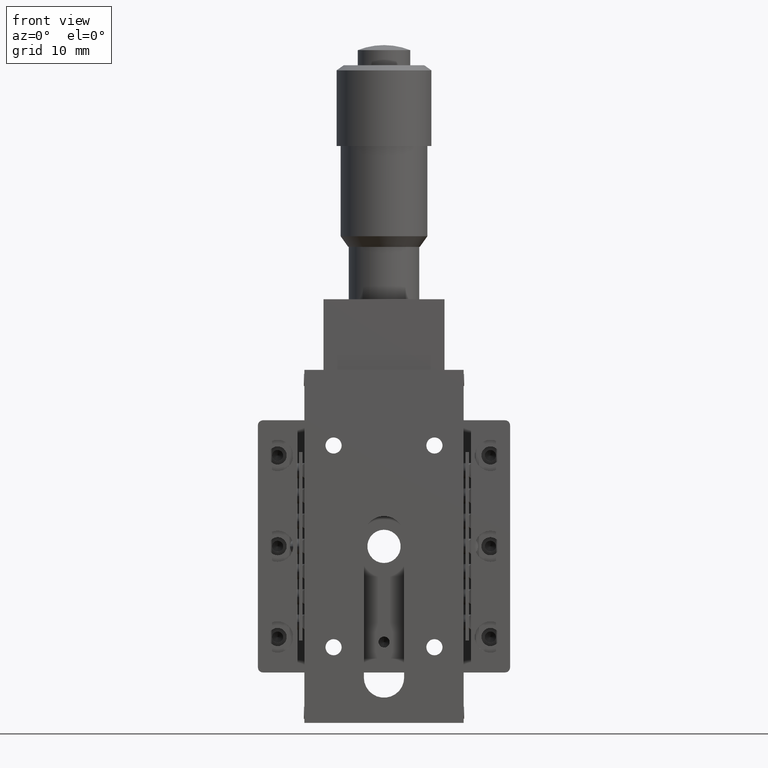
[diagram: clean part render]
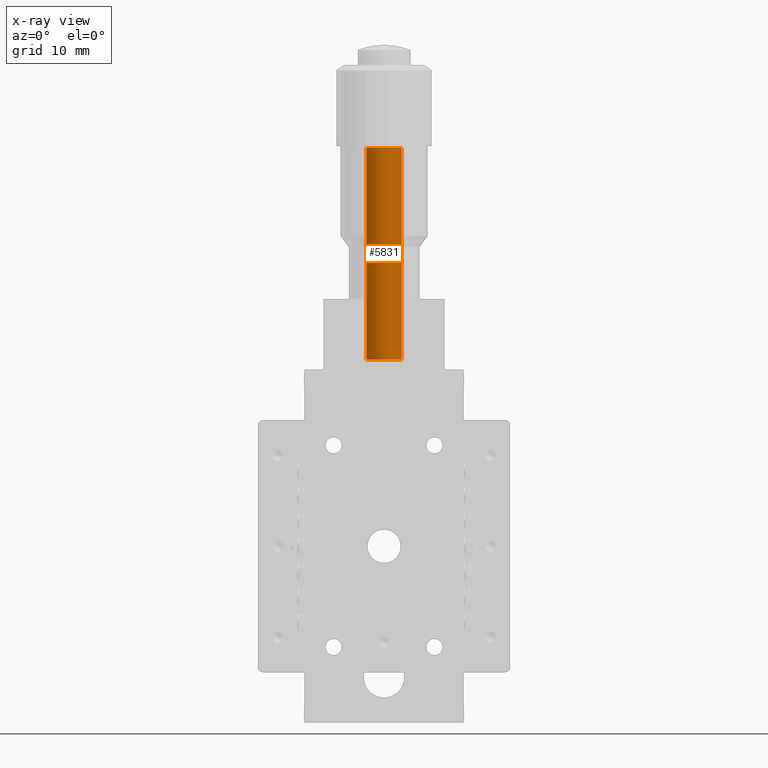
[diagram: x-ray — body ghosted, one internal face saturated and labeled with its STEP entity id]
A machine part, front view, then the same camera in x-ray: the body is ghosted and one INTERNAL B-rep face — a face not visible from any outside direction — is saturated and labeled: STEP entity #5831.
In plain terms, the highlighted cylindrical surface (edge-blend (fillet) strip) has radius 1.75 mm, axis along (-0, -0, -1).
Its self-contained STEP definition (entity closure, byte-faithful):
#197 = ORIENTED_EDGE ( 'NONE', *, *, #13772, .F. ) ;
#2746 = CARTESIAN_POINT ( 'NONE',  ( 1.749251930026276300, 6.148836680137377700, 18.50000000000000400 ) ) ;
#3387 = CARTESIAN_POINT ( 'NONE',  ( 4.607139138362302200E-015, 6.199999999999908700, 39.50000000000000700 ) ) ;
#3846 = CARTESIAN_POINT ( 'NONE',  ( 1.749251930026278500, 6.148836680137377700, 39.50000000000000700 ) ) ;
#3950 = CARTESIAN_POINT ( 'NONE',  ( -1.749251930026272300, 6.251163319862437900, 39.50000000000000700 ) ) ;
#4913 = CIRCLE ( 'NONE', #11632, 1.750000000000002900 ) ;
#5227 = EDGE_CURVE ( 'NONE', #13415, #13122, #4913, .T. ) ;
#5534 = EDGE_CURVE ( 'NONE', #32231, #13415, #26014, .T. ) ;
#5831 = ADVANCED_FACE ( 'NONE', ( #19700 ), #13719, .F. ) ;
#6256 = CARTESIAN_POINT ( 'NONE',  ( 4.607139138362302200E-015, 6.199999999999908700, 39.50000000000000700 ) ) ;
#7273 = DIRECTION ( 'NONE',  ( -1.110223024626043800E-016, -1.762506864451433400E-016, -1.000000000000000000 ) ) ;
#7364 = ORIENTED_EDGE ( 'NONE', *, *, #17724, .F. ) ;
#7502 = DIRECTION ( 'NONE',  ( -0.9995725314435850400, 0.02923618277858829100, 0.0000000000000000000 ) ) ;
#7835 = CARTESIAN_POINT ( 'NONE',  ( -1.749251930026272300, 6.251163319862437900, 39.50000000000000700 ) ) ;
#9318 = EDGE_LOOP ( 'NONE', ( #7364, #22040, #33728, #197 ) ) ;
#9783 = CIRCLE ( 'NONE', #15249, 1.750000000000002900 ) ;
#11632 = AXIS2_PLACEMENT_3D ( 'NONE', #20935, #7273, #7502 ) ;
#11931 = VERTEX_POINT ( 'NONE', #3950 ) ;
#13122 = VERTEX_POINT ( 'NONE', #28243 ) ;
#13415 = VERTEX_POINT ( 'NONE', #2746 ) ;
#13719 = CYLINDRICAL_SURFACE ( 'NONE', #30956, 1.750000000000002900 ) ;
#13772 = EDGE_CURVE ( 'NONE', #11931, #13122, #33749, .T. ) ;
#14584 = VECTOR ( 'NONE', #27204, 1000.000000000000000 ) ;
#14703 = DIRECTION ( 'NONE',  ( -0.9995725314435851500, 0.02923618277858829100, 0.0000000000000000000 ) ) ;
#15249 = AXIS2_PLACEMENT_3D ( 'NONE', #3387, #25119, #14703 ) ;
#17724 = EDGE_CURVE ( 'NONE', #32231, #11931, #9783, .T. ) ;
#19153 = CARTESIAN_POINT ( 'NONE',  ( 1.749251930026281400, 6.148836680137379500, 39.50000000000000700 ) ) ;
#19700 = FACE_OUTER_BOUND ( 'NONE', #9318, .T. ) ;
#20935 = CARTESIAN_POINT ( 'NONE',  ( 2.276824562219559300E-015, 6.199999999999905100, 18.50000000000000400 ) ) ;
#22040 = ORIENTED_EDGE ( 'NONE', *, *, #5534, .T. ) ;
#25119 = DIRECTION ( 'NONE',  ( -1.110223024626043800E-016, -1.762506864451433400E-016, -1.000000000000000000 ) ) ;
#25123 = DIRECTION ( 'NONE',  ( -1.110223024626043800E-016, -1.762506864451433900E-016, -1.000000000000000000 ) ) ;
#26014 = LINE ( 'NONE', #19153, #14584 ) ;
#27204 = DIRECTION ( 'NONE',  ( -1.110223024626043800E-016, -1.762506864451433900E-016, -1.000000000000000000 ) ) ;
#28243 = CARTESIAN_POINT ( 'NONE',  ( -1.749251930026274500, 6.251163319862435200, 18.50000000000000400 ) ) ;
#29073 = VECTOR ( 'NONE', #32062, 1000.000000000000000 ) ;
#30718 = DIRECTION ( 'NONE',  ( -0.9995725314435851500, 0.02923618277858829100, 0.0000000000000000000 ) ) ;
#30956 = AXIS2_PLACEMENT_3D ( 'NONE', #6256, #25123, #30718 ) ;
#32062 = DIRECTION ( 'NONE',  ( -1.110223024626043800E-016, -1.762506864451433900E-016, -1.000000000000000000 ) ) ;
#32231 = VERTEX_POINT ( 'NONE', #3846 ) ;
#33728 = ORIENTED_EDGE ( 'NONE', *, *, #5227, .T. ) ;
#33749 = LINE ( 'NONE', #7835, #29073 ) ;